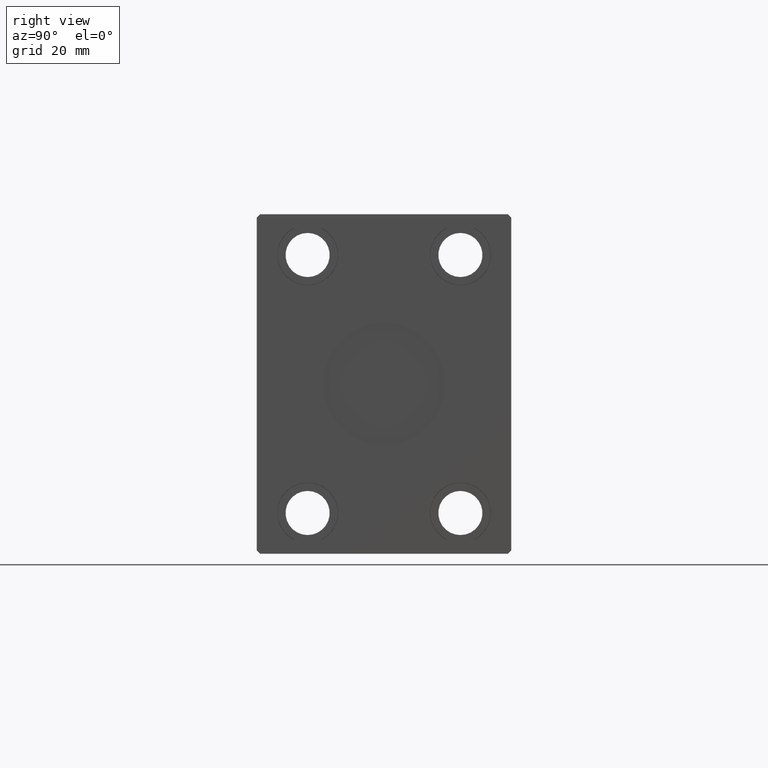
[diagram: clean part render]
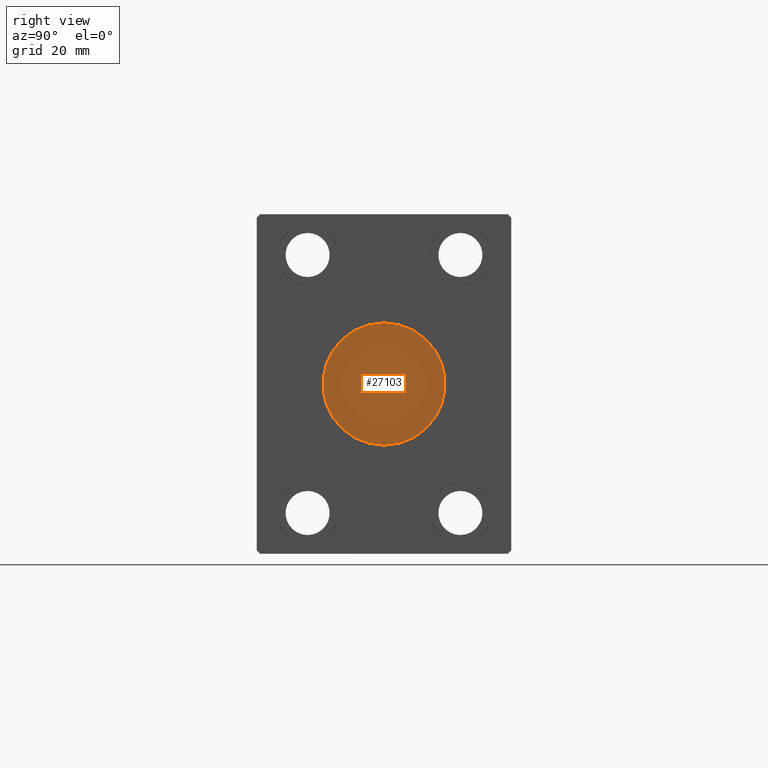
[diagram: same view with one face highlighted and labeled with its STEP entity id]
A machine part, right view. The second image highlights one B-rep face of the part: STEP entity #27103.
In plain terms, the highlighted planar face has unit normal (1, 0, 0).
Its self-contained STEP definition (entity closure, byte-faithful):
#1766 = AXIS2_PLACEMENT_3D ( 'NONE', #11466, #10805, #39101 ) ;
#8308 = CARTESIAN_POINT ( 'NONE',  ( 161.8000000000000114, 2.204364238465235428E-15, 18.00000000000000000 ) ) ;
#9574 = VERTEX_POINT ( 'NONE', #8308 ) ;
#10394 = DIRECTION ( 'NONE',  ( 0.000000000000000000, 0.000000000000000000, -1.000000000000000000 ) ) ;
#10805 = DIRECTION ( 'NONE',  ( 1.000000000000000000, 0.000000000000000000, 0.000000000000000000 ) ) ;
#11272 = DIRECTION ( 'NONE',  ( 0.000000000000000000, 0.000000000000000000, -1.000000000000000000 ) ) ;
#11466 = CARTESIAN_POINT ( 'NONE',  ( 161.8000000000000114, 0.000000000000000000, 0.000000000000000000 ) ) ;
#13971 = DIRECTION ( 'NONE',  ( 1.000000000000000000, 0.000000000000000000, 0.000000000000000000 ) ) ;
#14544 = ORIENTED_EDGE ( 'NONE', *, *, #31908, .T. ) ;
#15042 = AXIS2_PLACEMENT_3D ( 'NONE', #16685, #13971, #10394 ) ;
#16685 = CARTESIAN_POINT ( 'NONE',  ( 161.8000000000000114, 0.000000000000000000, 0.000000000000000000 ) ) ;
#19678 = CIRCLE ( 'NONE', #22575, 18.00000000000000000 ) ;
#22575 = AXIS2_PLACEMENT_3D ( 'NONE', #27690, #41408, #11272 ) ;
#23609 = EDGE_CURVE ( 'NONE', #9574, #38814, #19678, .T. ) ;
#24726 = CIRCLE ( 'NONE', #1766, 18.00000000000000000 ) ;
#27103 = ADVANCED_FACE ( 'NONE', ( #37159 ), #33787, .T. ) ;
#27690 = CARTESIAN_POINT ( 'NONE',  ( 161.8000000000000114, 0.000000000000000000, 0.000000000000000000 ) ) ;
#29371 = EDGE_LOOP ( 'NONE', ( #14544, #39265 ) ) ;
#31908 = EDGE_CURVE ( 'NONE', #38814, #9574, #24726, .T. ) ;
#32349 = CARTESIAN_POINT ( 'NONE',  ( 161.8000000000000114, 0.000000000000000000, -18.00000000000000000 ) ) ;
#33787 = PLANE ( 'NONE',  #15042 ) ;
#37159 = FACE_OUTER_BOUND ( 'NONE', #29371, .T. ) ;
#38814 = VERTEX_POINT ( 'NONE', #32349 ) ;
#39101 = DIRECTION ( 'NONE',  ( 0.000000000000000000, 0.000000000000000000, -1.000000000000000000 ) ) ;
#39265 = ORIENTED_EDGE ( 'NONE', *, *, #23609, .T. ) ;
#41408 = DIRECTION ( 'NONE',  ( 1.000000000000000000, 0.000000000000000000, 0.000000000000000000 ) ) ;